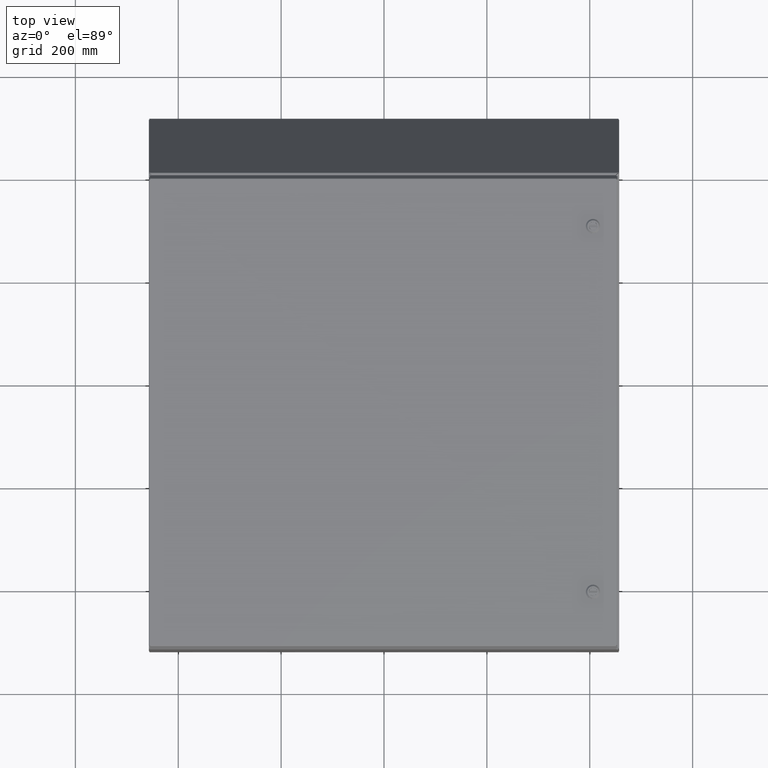
[diagram: clean part render]
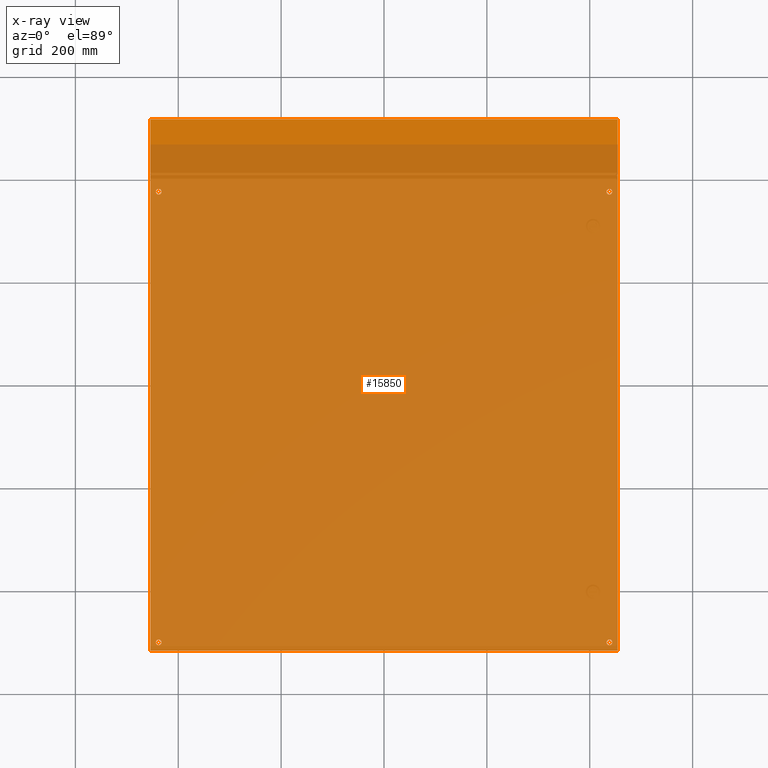
[diagram: x-ray — body ghosted, one internal face saturated and labeled with its STEP entity id]
A machine part, top view, then the same camera in x-ray: the body is ghosted and one INTERNAL B-rep face — a face not visible from any outside direction — is saturated and labeled: STEP entity #15850.
In plain terms, the highlighted planar face has unit normal (0, 0, 1).
Its self-contained STEP definition (entity closure, byte-faithful):
#447=PLANE('',#16872);
#1277=LINE('',#24586,#2504);
#1284=LINE('',#24626,#2511);
#1287=LINE('',#24633,#2514);
#1292=LINE('',#24662,#2519);
#1293=LINE('',#24664,#2520);
#1294=LINE('',#24667,#2521);
#2504=VECTOR('',#18779,0.0201833635271808);
#2511=VECTOR('',#18788,0.0201833635271975);
#2514=VECTOR('',#18797,40.6695065336324);
#2519=VECTOR('',#18814,35.7515676844617);
#2520=VECTOR('',#18817,40.6695065336324);
#2521=VECTOR('',#18820,35.7655336786487);
#3671=FACE_BOUND('',#5014,.T.);
#3672=FACE_BOUND('',#5015,.T.);
#3673=FACE_BOUND('',#5016,.T.);
#3674=FACE_BOUND('',#5017,.T.);
#3675=FACE_BOUND('',#5018,.T.);
#5014=EDGE_LOOP('',(#10939));
#5015=EDGE_LOOP('',(#10940));
#5016=EDGE_LOOP('',(#10941));
#5017=EDGE_LOOP('',(#10942));
#5018=EDGE_LOOP('',(#10943,#10944,#10945,#10946,#10947,#10948,#10949,#10950));
#6089=CIRCLE('',#16765,0.21875);
#6091=CIRCLE('',#16768,0.21875);
#6093=CIRCLE('',#16771,0.21875);
#6095=CIRCLE('',#16774,0.21875);
#6105=CIRCLE('',#16873,0.07);
#6106=CIRCLE('',#16874,0.07);
#6741=VERTEX_POINT('',#22837);
#6743=VERTEX_POINT('',#22842);
#6745=VERTEX_POINT('',#22847);
#6747=VERTEX_POINT('',#22852);
#6879=VERTEX_POINT('',#24098);
#6886=VERTEX_POINT('',#24216);
#6917=VERTEX_POINT('',#24568);
#6920=VERTEX_POINT('',#24585);
#6923=VERTEX_POINT('',#24612);
#6925=VERTEX_POINT('',#24624);
#6926=VERTEX_POINT('',#24632);
#6928=VERTEX_POINT('',#24666);
#8163=EDGE_CURVE('',#6741,#6741,#6089,.T.);
#8165=EDGE_CURVE('',#6743,#6743,#6091,.T.);
#8167=EDGE_CURVE('',#6745,#6745,#6093,.T.);
#8169=EDGE_CURVE('',#6747,#6747,#6095,.T.);
#8453=EDGE_CURVE('',#6920,#6917,#1277,.T.);
#8461=EDGE_CURVE('',#6923,#6925,#1284,.T.);
#8464=EDGE_CURVE('',#6926,#6923,#1287,.T.);
#8473=EDGE_CURVE('',#6920,#6925,#1292,.T.);
#8474=EDGE_CURVE('',#6917,#6879,#1293,.T.);
#8475=EDGE_CURVE('',#6879,#6886,#6105,.T.);
#8476=EDGE_CURVE('',#6886,#6928,#1294,.T.);
#8477=EDGE_CURVE('',#6928,#6926,#6106,.T.);
#10939=ORIENTED_EDGE('',*,*,#8163,.T.);
#10940=ORIENTED_EDGE('',*,*,#8165,.T.);
#10941=ORIENTED_EDGE('',*,*,#8167,.T.);
#10942=ORIENTED_EDGE('',*,*,#8169,.T.);
#10943=ORIENTED_EDGE('',*,*,#8461,.T.);
#10944=ORIENTED_EDGE('',*,*,#8473,.F.);
#10945=ORIENTED_EDGE('',*,*,#8453,.T.);
#10946=ORIENTED_EDGE('',*,*,#8474,.T.);
#10947=ORIENTED_EDGE('',*,*,#8475,.T.);
#10948=ORIENTED_EDGE('',*,*,#8476,.T.);
#10949=ORIENTED_EDGE('',*,*,#8477,.T.);
#10950=ORIENTED_EDGE('',*,*,#8464,.T.);
#15850=ADVANCED_FACE('',(#3671,#3672,#3673,#3674,#3675),#447,.T.);
#16765=AXIS2_PLACEMENT_3D('',#22838,#18396,#18397);
#16768=AXIS2_PLACEMENT_3D('',#22843,#18402,#18403);
#16771=AXIS2_PLACEMENT_3D('',#22848,#18408,#18409);
#16774=AXIS2_PLACEMENT_3D('',#22853,#18414,#18415);
#16872=AXIS2_PLACEMENT_3D('',#24663,#18815,#18816);
#16873=AXIS2_PLACEMENT_3D('',#24665,#18818,#18819);
#16874=AXIS2_PLACEMENT_3D('',#24668,#18821,#18822);
#18396=DIRECTION('center_axis',(0.,0.,-1.));
#18397=DIRECTION('ref_axis',(1.,0.,0.));
#18402=DIRECTION('center_axis',(0.,0.,-1.));
#18403=DIRECTION('ref_axis',(1.,0.,0.));
#18408=DIRECTION('center_axis',(0.,0.,-1.));
#18409=DIRECTION('ref_axis',(1.,0.,0.));
#18414=DIRECTION('center_axis',(0.,0.,-1.));
#18415=DIRECTION('ref_axis',(1.,0.,0.));
#18779=DIRECTION('',(-0.939692620785908,-0.342020143325669,0.));
#18788=DIRECTION('',(-0.939692620785908,0.342020143325669,0.));
#18797=DIRECTION('',(-5.55111512312578E-017,1.,0.));
#18814=DIRECTION('',(1.,0.,0.));
#18815=DIRECTION('center_axis',(0.,0.,1.));
#18816=DIRECTION('ref_axis',(-0.939692620785908,0.342020143325669,0.));
#18817=DIRECTION('',(1.11022302462516E-016,-1.,0.));
#18818=DIRECTION('center_axis',(0.,0.,-1.));
#18819=DIRECTION('ref_axis',(1.,-3.90263999094895E-017,0.));
#18820=DIRECTION('',(1.,1.11022302462516E-016,0.));
#18821=DIRECTION('center_axis',(0.,0.,-1.));
#18822=DIRECTION('ref_axis',(1.,-3.90263999094895E-017,0.));
#22837=CARTESIAN_POINT('',(-17.46875,14.8531785944028,0.074));
#22838=CARTESIAN_POINT('Origin',(-17.25,14.8531785944028,0.074));
#22842=CARTESIAN_POINT('',(17.03125,14.8531785944028,0.074));
#22843=CARTESIAN_POINT('Origin',(17.25,14.8531785944028,0.074));
#22847=CARTESIAN_POINT('',(-17.46875,-19.6468214055972,0.074));
#22848=CARTESIAN_POINT('Origin',(-17.25,-19.6468214055972,0.074));
#22852=CARTESIAN_POINT('',(17.03125,-19.6468214055972,0.074));
#22853=CARTESIAN_POINT('Origin',(17.25,-19.6468214055972,0.074));
#24098=CARTESIAN_POINT('',(-17.89475,-20.2795882449216,0.074));
#24216=CARTESIAN_POINT('',(-17.8827668393244,-20.2915714055972,0.074));
#24568=CARTESIAN_POINT('',(-17.89475,20.3899182887108,0.074));
#24585=CARTESIAN_POINT('',(-17.8757838422309,20.3968214055972,0.074));
#24586=CARTESIAN_POINT('',(-13.2611326811157,22.0764170697651,0.074));
#24612=CARTESIAN_POINT('',(17.89475,20.3899182887108,0.074));
#24624=CARTESIAN_POINT('',(17.8757838422309,20.3968214055972,0.074));
#24626=CARTESIAN_POINT('',(19.2611326811157,19.8925956641679,0.074));
#24632=CARTESIAN_POINT('',(17.89475,-20.2795882449216,0.074));
#24633=CARTESIAN_POINT('',(17.89475,10.1984107027986,0.074));
#24662=CARTESIAN_POINT('',(-18.,20.3968214055972,0.074));
#24663=CARTESIAN_POINT('Origin',(-2.79741234551221E-015,0.,0.074));
#24664=CARTESIAN_POINT('',(-17.89475,-10.1457857027986,0.074));
#24665=CARTESIAN_POINT('Origin',(-17.9378919211154,-20.3347133267126,0.074));
#24666=CARTESIAN_POINT('',(17.8827668393244,-20.2915714055972,0.074));
#24667=CARTESIAN_POINT('',(8.947375,-20.2915714055972,0.074));
#24668=CARTESIAN_POINT('Origin',(17.9378919211154,-20.3347133267126,0.074));